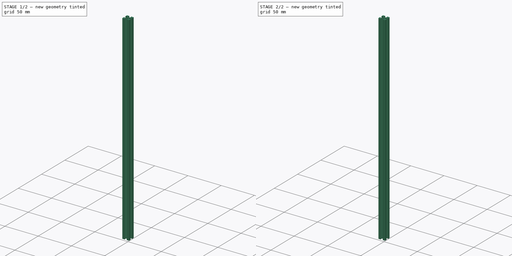
[diagram: build sequence overview — one tinted view per stage of 2, left to right]
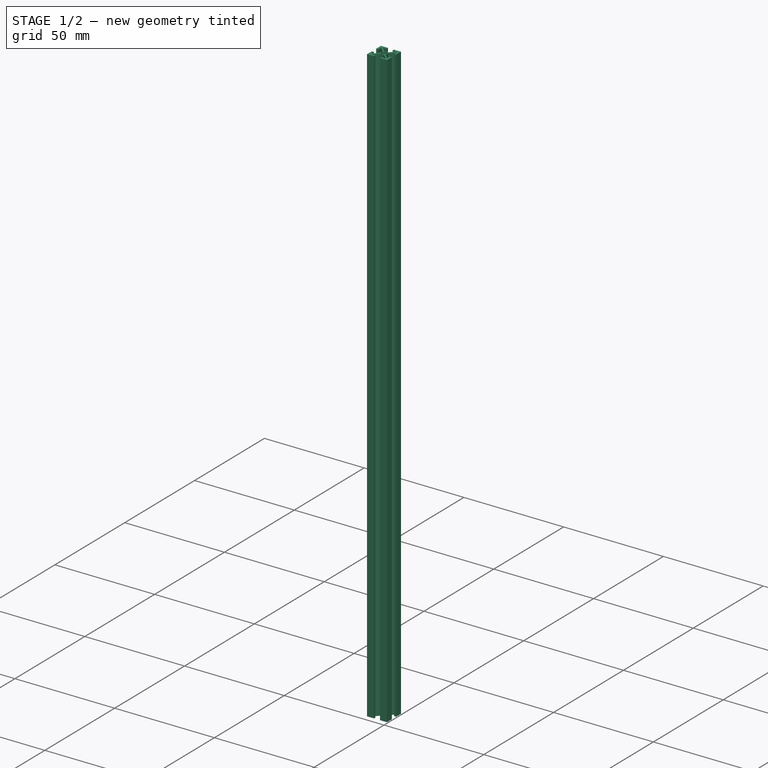
[diagram: stage 1 of 2 — iso view after this stage's code; geometry added in this stage tinted green]
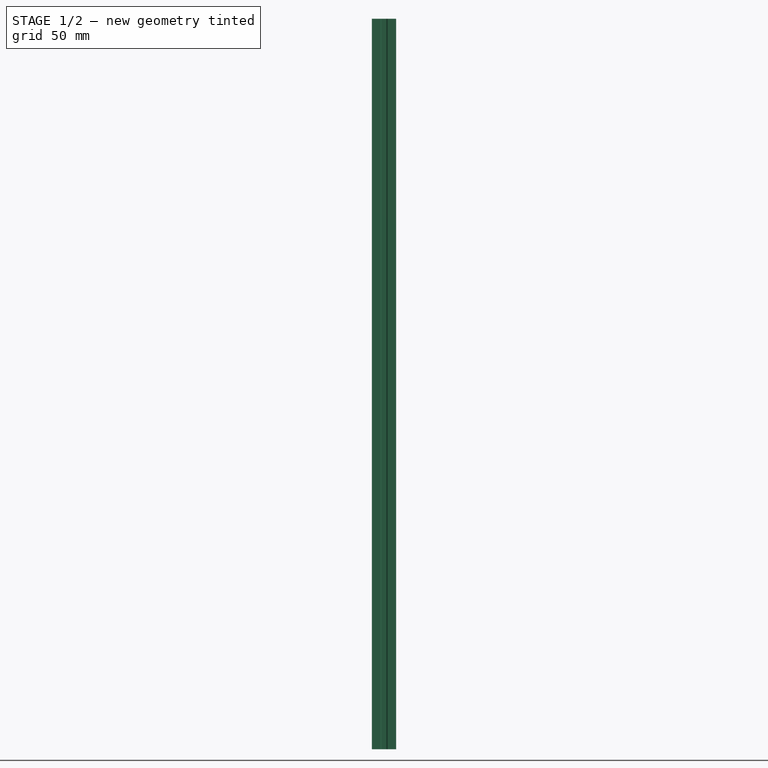
[diagram: stage 1 of 2 — front view after this stage's code; geometry added in this stage tinted green]
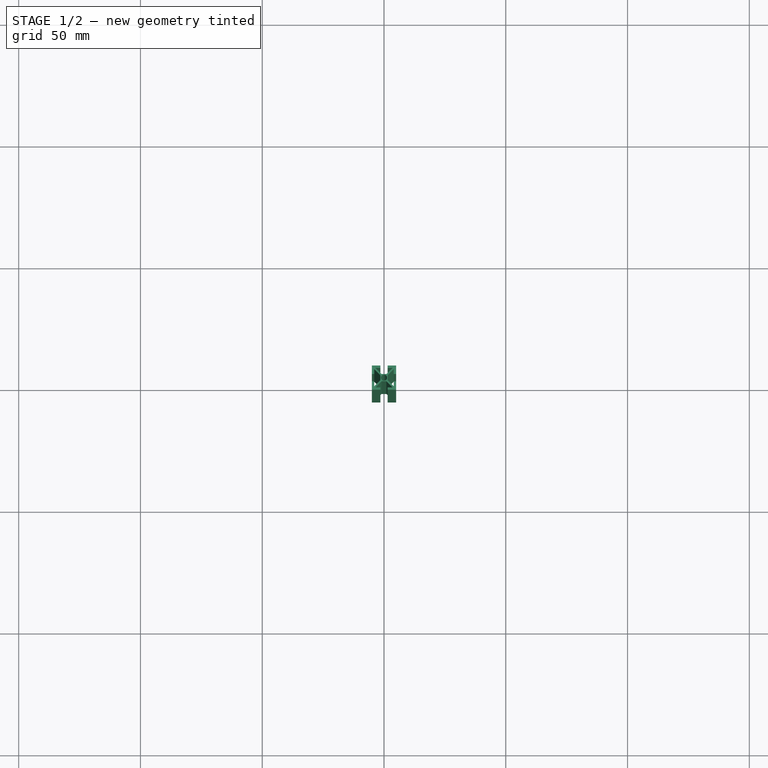
[diagram: stage 1 of 2 — top view after this stage's code; geometry added in this stage tinted green]
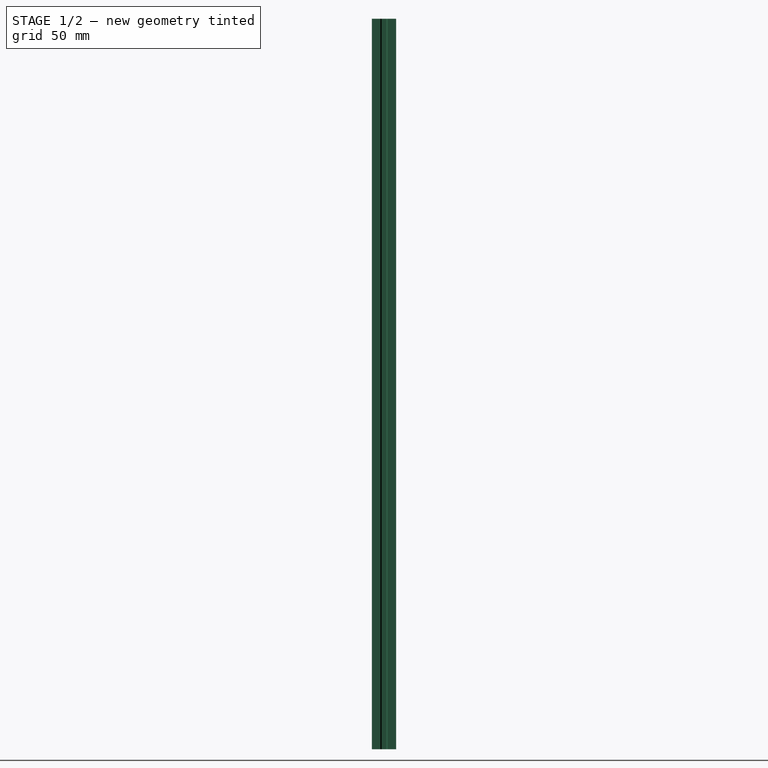
[diagram: stage 1 of 2 — right view after this stage's code; geometry added in this stage tinted green]
FCSTD DOCUMENT  (FreeCAD 0.18R16146 (Git))
Label: makerbeam_profile
License: All rights reserved
LicenseURL: http://en.wikipedia.org/wiki/All_rights_reserved
objects: Sketcher::SketchObject×2, Spreadsheet::Sheet×1, PartDesign::Pad×1, PartDesign::Pocket×1, PartDesign::Fillet×1, PartDesign::Body×1, App::Part×1
note: 8 computed .brp shape members not serialized (recipe doc carries the construction recipe); baked Part::Feature solids carry a one-line shape summary decoded from their .brp

FEATURE [Sketcher::SketchObject] Sketch
  MapMode = 5
  Support = -> [XY_Plane]
  sketch-geometry (40):
    g0: LineSegment StartX=1.5 StartY=5 StartZ=0 EndX=5 EndY=5 EndZ=0
    g1: LineSegment StartX=5 StartY=5 StartZ=0 EndX=5 EndY=1.5 EndZ=0
    g2: LineSegment StartX=5 StartY=1.5 StartZ=0 EndX=4 EndY=1.5 EndZ=0
    g3: LineSegment StartX=1.5 StartY=5 StartZ=0 EndX=1.5 EndY=4 EndZ=0
    g4: LineSegment StartX=0 StartY=1.5 StartZ=0 EndX=1 EndY=1.5 EndZ=0
    g5: LineSegment StartX=1.5 StartY=0 StartZ=0 EndX=1.5 EndY=1 EndZ=0
    g6: LineSegment StartX=1.5 StartY=4 StartZ=0 EndX=3.5 EndY=4 EndZ=0
    g7: LineSegment StartX=3.5 StartY=4 StartZ=0 EndX=1 EndY=1.5 EndZ=0
    g8: LineSegment StartX=1.5 StartY=1 StartZ=0 EndX=4 EndY=3.5 EndZ=0
    g9: LineSegment StartX=4 StartY=3.5 StartZ=0 EndX=4 EndY=1.5 EndZ=0
    g10: LineSegment StartX=-1.5 StartY=5 StartZ=0 EndX=-5 EndY=5 EndZ=0
    g11: LineSegment StartX=-5 StartY=5 StartZ=0 EndX=-5 EndY=1.5 EndZ=0
    g12: LineSegment StartX=-5 StartY=1.5 StartZ=0 EndX=-4 EndY=1.5 EndZ=0
    g13: LineSegment StartX=-1.5 StartY=5 StartZ=0 EndX=-1.5 EndY=4 EndZ=0
    g14: LineSegment StartX=0 StartY=1.5 StartZ=0 EndX=-1 EndY=1.5 EndZ=0
    g15: LineSegment StartX=-1.5 StartY=0 StartZ=0 EndX=-1.5 EndY=1 EndZ=0
    g16: LineSegment StartX=-1.5 StartY=4 StartZ=0 EndX=-3.5 EndY=4 EndZ=0
    g17: LineSegment StartX=-3.5 StartY=4 StartZ=0 EndX=-1 EndY=1.5 EndZ=0
    g18: LineSegment StartX=-1.5 StartY=1 StartZ=0 EndX=-4 EndY=3.5 EndZ=0
    g19: LineSegment StartX=-4 StartY=3.5 StartZ=0 EndX=-4 EndY=1.5 EndZ=0
    g20: LineSegment StartX=1.5 StartY=-5 StartZ=0 EndX=5 EndY=-5 EndZ=0
    g21: LineSegment StartX=5 StartY=-5 StartZ=0 EndX=5 EndY=-1.5 EndZ=0
    g22: LineSegment StartX=5 StartY=-1.5 StartZ=0 EndX=4 EndY=-1.5 EndZ=0
    g23: LineSegment StartX=1.5 StartY=-5 StartZ=0 EndX=1.5 EndY=-4 EndZ=0
    g24: LineSegment StartX=0 StartY=-1.5 StartZ=0 EndX=1 EndY=-1.5 EndZ=0
    g25: LineSegment StartX=1.5 StartY=0 StartZ=0 EndX=1.5 EndY=-1 EndZ=0
    g26: LineSegment StartX=1.5 StartY=-4 StartZ=0 EndX=3.5 EndY=-4 EndZ=0
    g27: LineSegment StartX=3.5 StartY=-4 StartZ=0 EndX=1 EndY=-1.5 EndZ=0
    g28: LineSegment StartX=1.5 StartY=-1 StartZ=0 EndX=4 EndY=-3.5 EndZ=0
    g29: LineSegment StartX=4 StartY=-3.5 StartZ=0 EndX=4 EndY=-1.5 EndZ=0
    g30: LineSegment StartX=-1.5 StartY=-5 StartZ=0 EndX=-5 EndY=-5 EndZ=0
    g31: LineSegment StartX=-5 StartY=-5 StartZ=0 EndX=-5 EndY=-1.5 EndZ=0
    g32: LineSegment StartX=-5 StartY=-1.5 StartZ=0 EndX=-4 EndY=-1.5 EndZ=0
    g33: LineSegment StartX=-1.5 StartY=-5 StartZ=0 EndX=-1.5 EndY=-4 EndZ=0
    g34: LineSegment StartX=0 StartY=-1.5 StartZ=0 EndX=-1 EndY=-1.5 EndZ=0
    g35: LineSegment StartX=-1.5 StartY=0 StartZ=0 EndX=-1.5 EndY=-1 EndZ=0
    g36: LineSegment StartX=-1.5 StartY=-4 StartZ=0 EndX=-3.5 EndY=-4 EndZ=0
    g37: LineSegment StartX=-3.5 StartY=-4 StartZ=0 EndX=-1 EndY=-1.5 EndZ=0
    g38: LineSegment StartX=-1.5 StartY=-1 StartZ=0 EndX=-4 EndY=-3.5 EndZ=0
    g39: LineSegment StartX=-4 StartY=-3.5 StartZ=0 EndX=-4 EndY=-1.5 EndZ=0
  constraints (69):
    c: Horizontal(g0)
    c: Coincident(g0,g1)
    c: Vertical(g1)
    c: Coincident(g1,g2)
    c: Horizontal(g2)
    c: Coincident(g0,g3)
    c: Vertical(g3)
    c: PointOnObject(g4,g-2)
    c: Horizontal(g4)
    c: Vertical(g5)
    c: Coincident(g3,g6)
    c: Horizontal(g6)
    c: Coincident(g6,g7)
    c: Coincident(g7,g4)
    c: Coincident(g5,g8)
    c: Coincident(g9,g8)
    c: Coincident(g9,g2)
    c: Vertical(g9)
    c: Horizontal(g10)
    c: Coincident(g10,g11)
    c: Vertical(g11)
    c: Coincident(g11,g12)
    c: Horizontal(g12)
    c: Coincident(g10,g13)
    c: Vertical(g13)
    c: Horizontal(g14)
    c: Vertical(g15)
    c: Coincident(g13,g16)
    c: Horizontal(g16)
    c: Coincident(g16,g17)
    c: Coincident(g17,g14)
    c: Coincident(g15,g18)
    c: Coincident(g19,g18)
    c: Coincident(g19,g12)
    c: Vertical(g19)
    c: Horizontal(g20)
    c: Coincident(g20,g21)
    c: Vertical(g21)
    c: Coincident(g21,g22)
    c: Horizontal(g22)
    c: Coincident(g20,g23)
    c: Vertical(g23)
    c: Horizontal(g24)
    c: Vertical(g25)
    c: Coincident(g23,g26)
    c: Horizontal(g26)
    c: Coincident(g26,g27)
    c: Coincident(g27,g24)
    c: Coincident(g25,g28)
    c: Coincident(g29,g28)
    c: Coincident(g29,g22)
    c: Vertical(g29)
    c: Horizontal(g30)
    c: Coincident(g30,g31)
    c: Vertical(g31)
    c: Coincident(g31,g32)
    c: Horizontal(g32)
    c: Coincident(g30,g33)
    c: Vertical(g33)
    c: Horizontal(g34)
    c: Vertical(g35)
    c: Coincident(g33,g36)
    c: Horizontal(g36)
    c: Coincident(g36,g37)
    c: Coincident(g37,g34)
    c: Coincident(g35,g38)
    c: Coincident(g39,g38)
    c: Coincident(g39,g32)
    c: Vertical(g39)
FEATURE [Spreadsheet::Sheet] Spreadsheet  label="Parameter_Makerbeam"
  cells = A1=Length; B1(makerbeam_length)=300; A2=Available by Makerbeam:; A3==1500mm; A4==900mm; A5==600mm; A6==300mm; A7==200mm; A8==150mm; A9==100mm; A10==60mm; A11==40mm
FEATURE [PartDesign::Pad] Pad
  Length = 300
  Length2 = 100
  Profile = -> Sketch
  Type = 0
  expr: Length = Parameter_Makerbeam.makerbeam_length
FEATURE [Sketcher::SketchObject] Sketch001
  MapMode = 5
  Support = -> [XY_Plane]
  sketch-geometry (1):
    g0: Circle CenterX=0 CenterY=0 CenterZ=0 NormalX=0 NormalY=0 NormalZ=1 AngleXU=0 Radius=1.25
  constraints (2):
    c: Coincident(g0,g-1)
    c: Radius(g0) = 1.25
FEATURE [PartDesign::Pocket] Pocket
  BaseFeature = -> Pad
  Length = 300
  Length2 = 100
  Profile = -> Sketch001
  Reversed = true
  Type = 0
  expr: Length = Parameter_Makerbeam.makerbeam_length
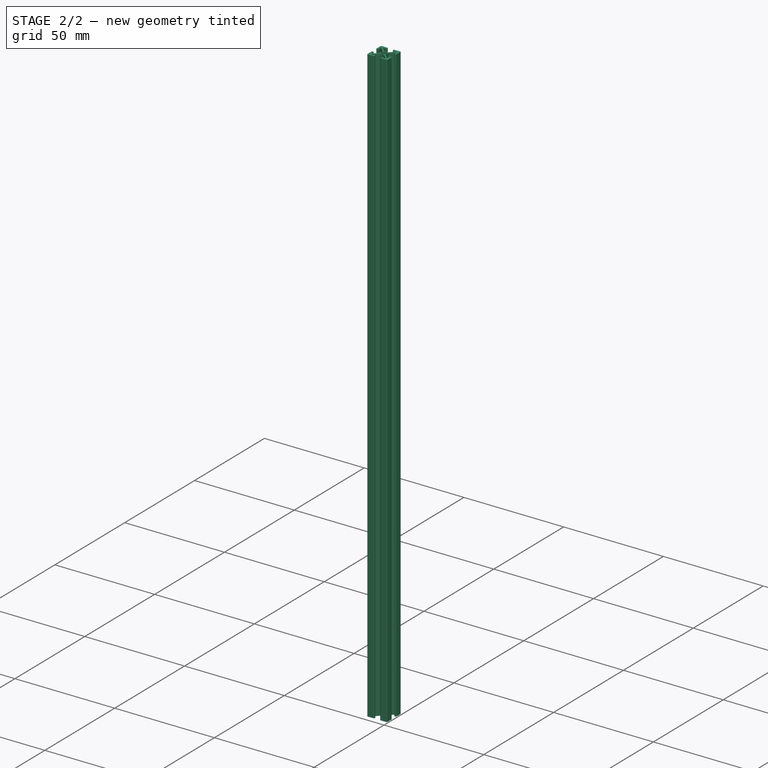
[diagram: stage 2 of 2 — iso view after this stage's code; geometry added in this stage tinted green]
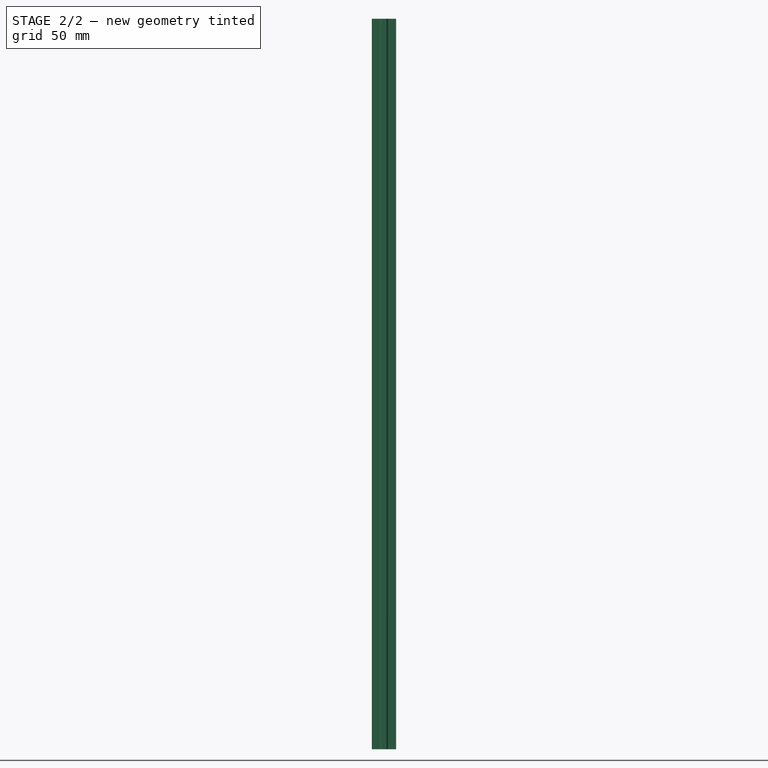
[diagram: stage 2 of 2 — front view after this stage's code; geometry added in this stage tinted green]
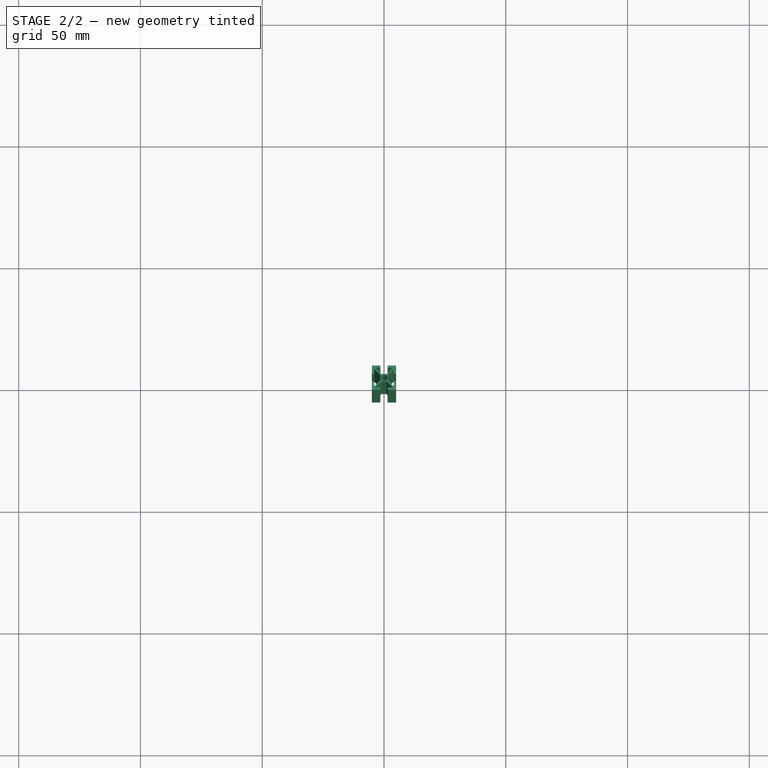
[diagram: stage 2 of 2 — top view after this stage's code; geometry added in this stage tinted green]
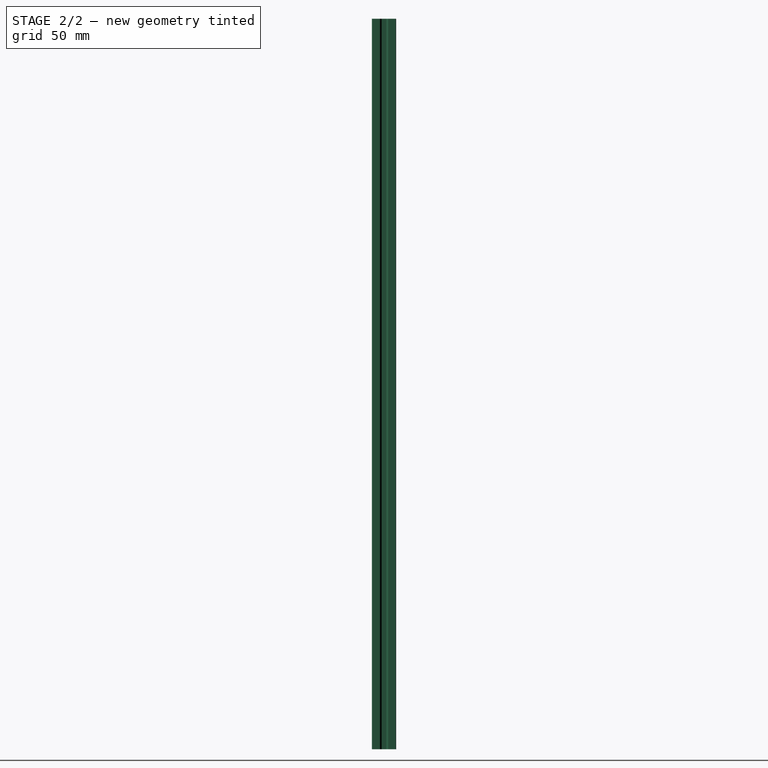
[diagram: stage 2 of 2 — right view after this stage's code; geometry added in this stage tinted green]
FEATURE [PartDesign::Fillet] Fillet
  Base = -> Pocket [Edge87,Edge5,Edge89,Edge91,Edge1,Edge103,Edge111,Edge109,Edge105,Edge107,Edge118,Edge120,Edge116,Edge102,Edge100,Edge98,Edge114,Edge96,Edge94]
  BaseFeature = -> Pocket
  Radius = 0.3
FEATURE [PartDesign::Body] Body
  Group = -> [Sketch,Pad,Sketch001,Pocket,Fillet]
  Origin = -> Origin
  Tip = -> Fillet
FEATURE [App::Part] Part  label="makerbeam_profile"
  Group = -> [Body,Spreadsheet]
  Origin = -> Origin001
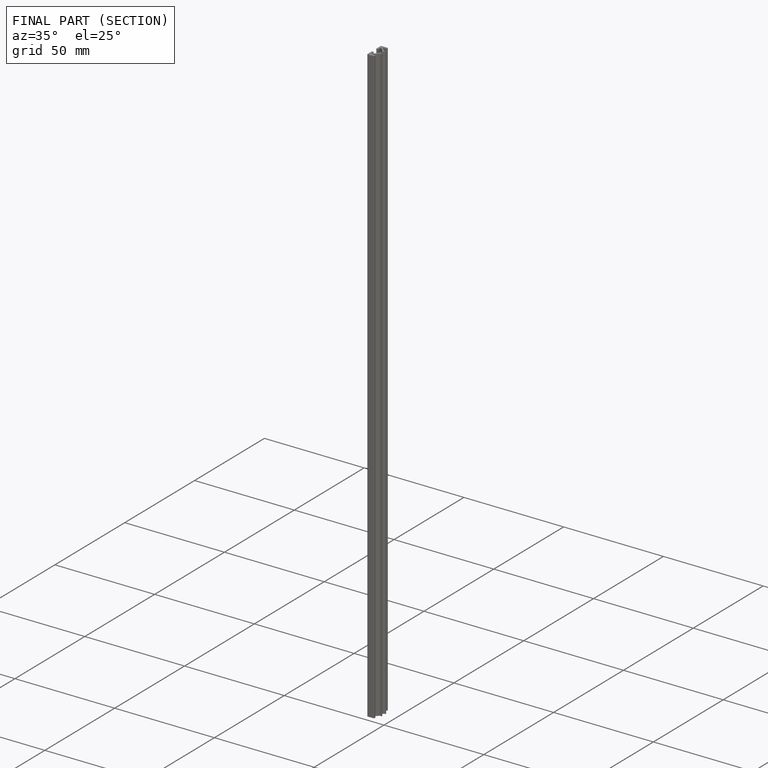
[diagram: finished part — half-section view (interior)]
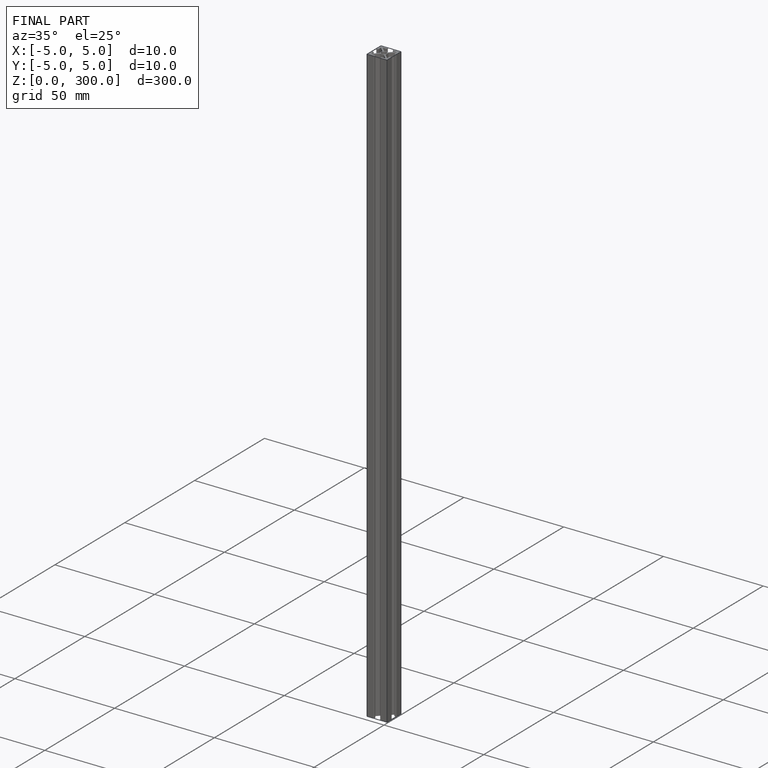
[diagram: finished part — iso view with bounding-box wireframe]
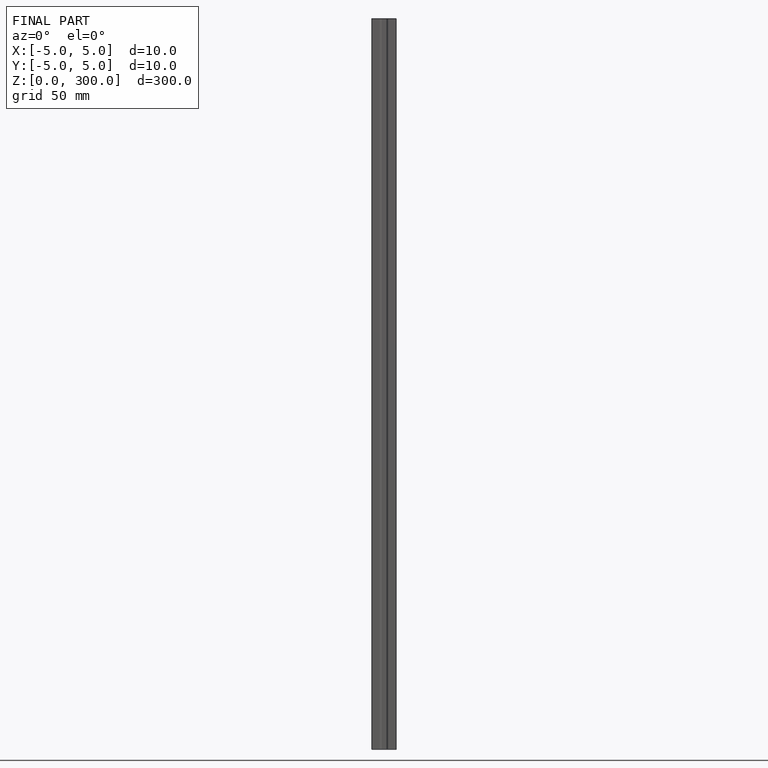
[diagram: finished part — front view with bounding-box wireframe]
